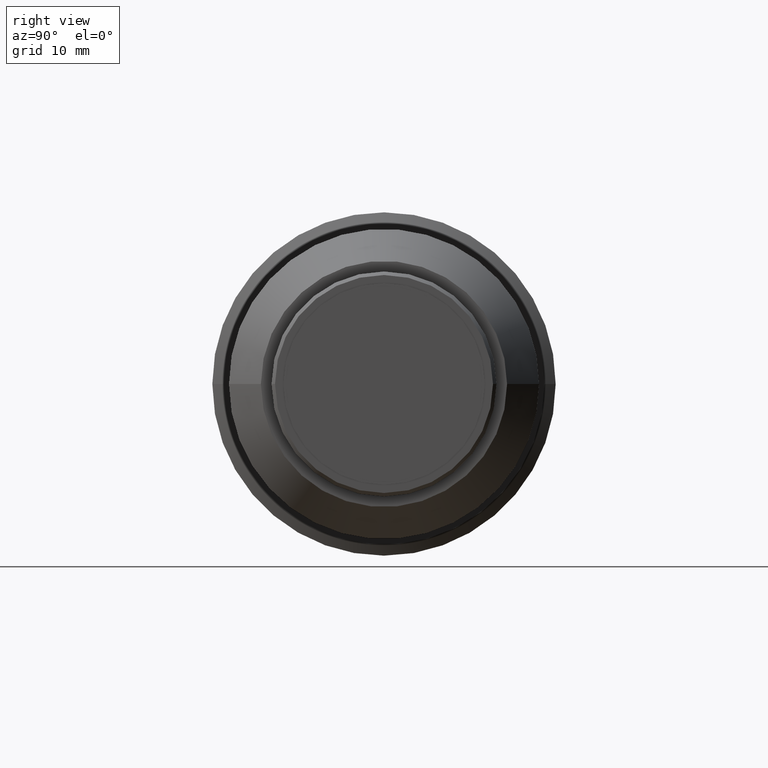
[diagram: clean part render]
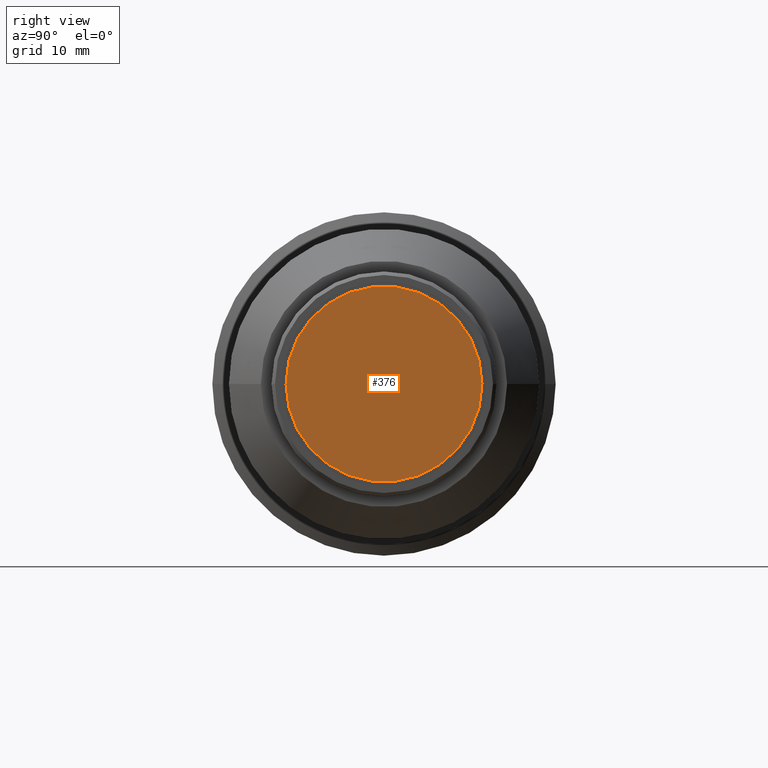
[diagram: same view with one face highlighted and labeled with its STEP entity id]
A machine part, right view. The second image highlights one B-rep face of the part: STEP entity #376.
In plain terms, the highlighted planar face has unit normal (1, 0, 0).
Its self-contained STEP definition (entity closure, byte-faithful):
#26 = CIRCLE ( 'NONE', #770, 8.842457351945700594 ) ;
#57 = CARTESIAN_POINT ( 'NONE',  ( -8.564851049404079619E-15, 8.842457351945707700, 0.000000000000000000 ) ) ;
#88 = PLANE ( 'NONE',  #378 ) ;
#110 = AXIS2_PLACEMENT_3D ( 'NONE', #1292, #369, #172 ) ;
#172 = DIRECTION ( 'NONE',  ( -1.838806884535415027E-16, 1.000000000000000000, 0.000000000000000000 ) ) ;
#201 = VERTEX_POINT ( 'NONE', #57 ) ;
#270 = ORIENTED_EDGE ( 'NONE', *, *, #912, .T. ) ;
#367 = DIRECTION ( 'NONE',  ( 1.000000000000000000, 1.838806884535414781E-16, 0.000000000000000000 ) ) ;
#369 = DIRECTION ( 'NONE',  ( 1.000000000000000000, 1.838806884535414781E-16, 0.000000000000000000 ) ) ;
#376 = ADVANCED_FACE ( 'NONE', ( #1204 ), #88, .T. ) ;
#378 = AXIS2_PLACEMENT_3D ( 'NONE', #381, #367, #494 ) ;
#381 = CARTESIAN_POINT ( 'NONE',  ( -2.874662771717040118E-15, 8.842457351945707700, 0.000000000000000000 ) ) ;
#384 = CARTESIAN_POINT ( 'NONE',  ( -5.312936758410369248E-15, -8.842457351945700594, 1.082888709265728039E-15 ) ) ;
#452 = DIRECTION ( 'NONE',  ( 1.000000000000000000, 1.838806884535414781E-16, 0.000000000000000000 ) ) ;
#494 = DIRECTION ( 'NONE',  ( -1.838806884535414781E-16, 1.000000000000000000, 0.000000000000000000 ) ) ;
#770 = AXIS2_PLACEMENT_3D ( 'NONE', #1171, #452, #977 ) ;
#912 = EDGE_CURVE ( 'NONE', #201, #988, #26, .T. ) ;
#977 = DIRECTION ( 'NONE',  ( -1.838806884535415027E-16, 1.000000000000000000, 0.000000000000000000 ) ) ;
#988 = VERTEX_POINT ( 'NONE', #384 ) ;
#1047 = ORIENTED_EDGE ( 'NONE', *, *, #1101, .T. ) ;
#1101 = EDGE_CURVE ( 'NONE', #988, #201, #1287, .T. ) ;
#1171 = CARTESIAN_POINT ( 'NONE',  ( -6.938893903907229955E-15, 7.363990359831430591E-15, 0.000000000000000000 ) ) ;
#1204 = FACE_OUTER_BOUND ( 'NONE', #1284, .T. ) ;
#1284 = EDGE_LOOP ( 'NONE', ( #270, #1047 ) ) ;
#1287 = CIRCLE ( 'NONE', #110, 8.842457351945700594 ) ;
#1292 = CARTESIAN_POINT ( 'NONE',  ( -6.938893903907229955E-15, 7.363990359831430591E-15, 0.000000000000000000 ) ) ;